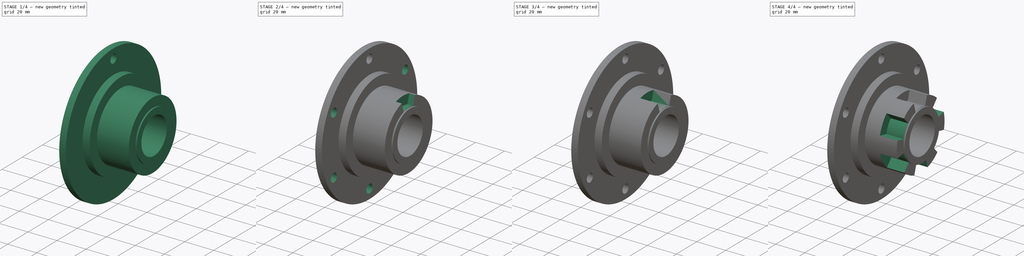
[diagram: build sequence overview — one tinted view per stage of 4, left to right]
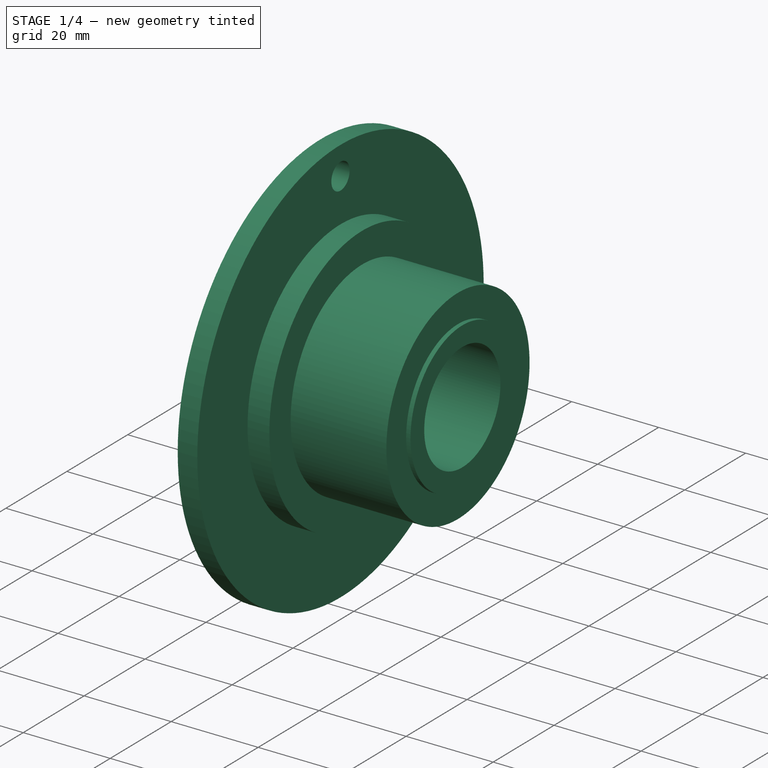
[diagram: stage 1 of 4 — iso view after this stage's code; geometry added in this stage tinted green]
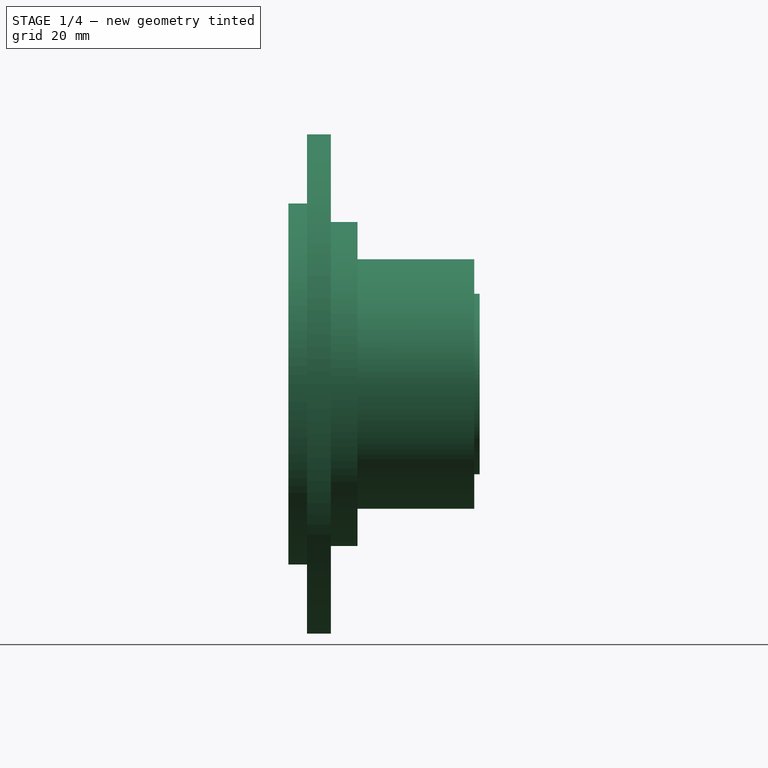
[diagram: stage 1 of 4 — front view after this stage's code; geometry added in this stage tinted green]
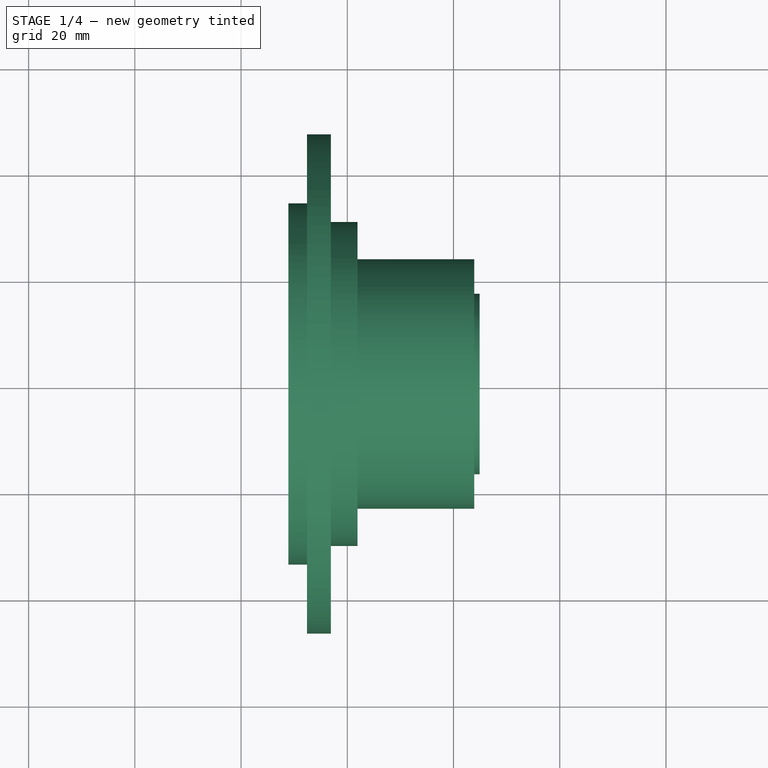
[diagram: stage 1 of 4 — top view after this stage's code; geometry added in this stage tinted green]
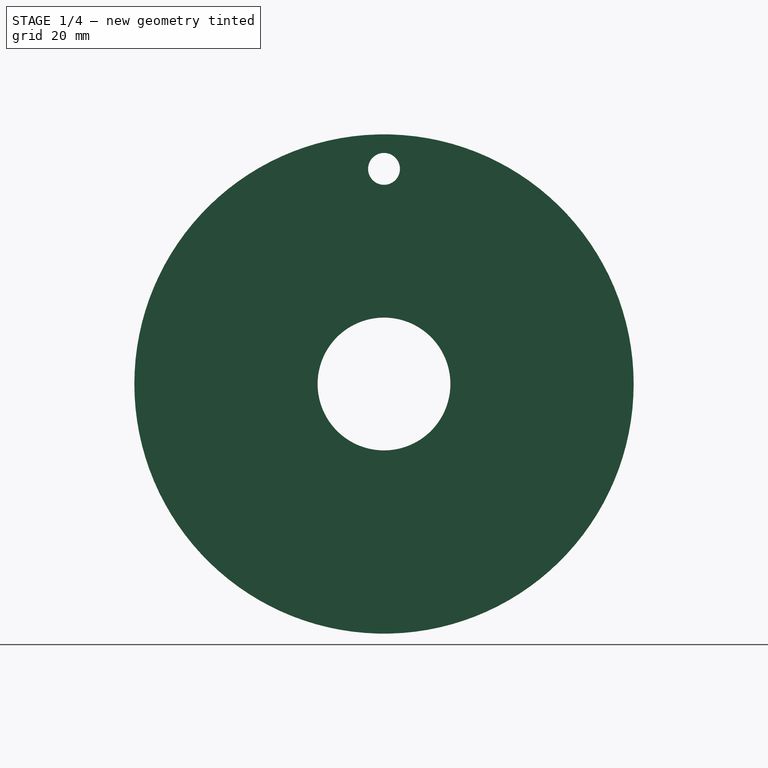
[diagram: stage 1 of 4 — right view after this stage's code; geometry added in this stage tinted green]
FCSTD DOCUMENT  (FreeCAD 1.0R39319 (Git))
Label: DG rear plate
License: All rights reserved
LicenseURL: https://en.wikipedia.org/wiki/All_rights_reserved
objects: Sketcher::SketchObject×7, PartDesign::Pocket×6, TechDraw::DrawProjGroupItem×3, PartDesign::PolarPattern×2, PartDesign::Revolution×1, PartDesign::Body×1, TechDraw::DrawSVGTemplate×1, TechDraw::DrawProjGroup×1, TechDraw::DrawPage×1
note: 40 computed .brp shape members not serialized (recipe doc carries the construction recipe); baked Part::Feature solids carry a one-line shape summary decoded from their .brp

FEATURE [Sketcher::SketchObject] Sketch
  ArcFitTolerance = 1e-06
  AttachmentSupport = -> [XY_Plane]
  FullyConstrained = false
  MakeInternals = false
  MapMode = 5
  sketch-geometry (16):
    g0: LineSegment StartX=68.9112 StartY=34 StartZ=0 EndX=68.9112 EndY=31.5 EndZ=0
    g1: LineSegment StartX=68.9112 StartY=31.5 StartZ=0 EndX=76.545 EndY=27.9403 EndZ=0
    g2: LineSegment StartX=76.545 StartY=27.9403 StartZ=0 EndX=76.545 EndY=14.5 EndZ=0
    g3: LineSegment StartX=76.545 StartY=14.5 StartZ=0 EndX=81.045 EndY=14.5 EndZ=0
    g4: LineSegment StartX=81.045 StartY=14.5 StartZ=0 EndX=81.045 EndY=12.5 EndZ=0
    g5: LineSegment StartX=81.045 StartY=12.5 StartZ=0 EndX=104.911 EndY=12.5 EndZ=0
    g6: LineSegment StartX=104.911 StartY=12.5 StartZ=0 EndX=104.911 EndY=17 EndZ=0
    g7: LineSegment StartX=104.911 StartY=17 StartZ=0 EndX=103.911 EndY=17 EndZ=0
    g8: LineSegment StartX=103.911 StartY=17 StartZ=0 EndX=103.911 EndY=23.5 EndZ=0
    g9: LineSegment StartX=103.911 StartY=23.5 StartZ=0 EndX=81.9112 EndY=23.5 EndZ=0
    g10: LineSegment StartX=81.9112 StartY=23.5 StartZ=0 EndX=81.9112 EndY=30.5 EndZ=0
    g11: LineSegment StartX=81.9112 StartY=30.5 StartZ=0 EndX=76.9112 EndY=30.5 EndZ=0
    g12: LineSegment StartX=76.9112 StartY=30.5 StartZ=0 EndX=76.9112 EndY=47 EndZ=0
    g13: LineSegment StartX=76.9112 StartY=47 StartZ=0 EndX=72.4112 EndY=47 EndZ=0
    g14: LineSegment StartX=72.4112 StartY=47 StartZ=0 EndX=72.4112 EndY=34 EndZ=0
    g15: LineSegment StartX=72.4112 StartY=34 StartZ=0 EndX=68.9112 EndY=34 EndZ=0
  constraints (46):
    c: Vertical(g0)
    c: Coincident(g0,g1)
    c: Coincident(g1,g2)
    c: Vertical(g2)
    c: Coincident(g2,g3)
    c: Horizontal(g3)
    c: Coincident(g3,g4)
    c: Vertical(g4)
    c: Coincident(g4,g5)
    c: Horizontal(g5)
    c: Coincident(g5,g6)
    c: Vertical(g6)
    c: Coincident(g6,g7)
    c: Horizontal(g7)
    c: Coincident(g7,g8)
    c: Vertical(g8)
    c: Coincident(g8,g9)
    c: Horizontal(g9)
    c: Coincident(g9,g10)
    c: Vertical(g10)
    c: Coincident(g10,g11)
    c: Coincident(g11,g12)
    c: Vertical(g12)
    c: Coincident(g12,g13)
    c: Horizontal(g13)
    c: Coincident(g13,g14)
    c: Vertical(g14)
    c: Coincident(g14,g15)
    c: Coincident(g15,g0)
    c: Horizontal(g11)
    c: Horizontal(g15)
    c: DistanceY(g0,g0) = 2.5
    c: Angle(g1,g0) = 2.00713
    c: DistanceX(g15,g15) = 3.5
    c: DistanceX(g13,g13) = 4.5
    c: DistanceX(g11,g11) = 5
    c: DistanceX(g9,g9) = 22
    c: DistanceY(g10,g10) = 7
    c: DistanceY(g8,g8) = 6.5
    c: DistanceY(g6,g6) = 4.5
    c: DistanceX(g3,g3) = 4.5
    c: DistanceY(g4,g4) = 2
    c: Distance(g-1,g5) = 12.5
    c: Distance(g-1,g15) = 34
    c: Distance(g-1,g13) = 47
    c: DistanceX(g7,g7) = 1
FEATURE [PartDesign::Revolution] Revolution
  Angle = 360
  Angle2 = 60
  Axis = (1,0,0)
  Base = (0,0,0)
  Profile = -> Sketch
  ReferenceAxis = -> X_Axis
  Refine = true
  Suppressed = false
  Type = 0
FEATURE [Sketcher::SketchObject] Sketch001
  ArcFitTolerance = 1e-06
  AttachmentSupport = -> [Revolution]
  ExternalGeometry = -> [Revolution]
  FullyConstrained = true
  MakeInternals = false
  MapMode = 5
  Placement = pos=(76.9112,0,0) rot=(0.57735,0.57735,0.57735;2.0944rad)
FEATURE [Sketcher::SketchObject] Sketch002
  ArcFitTolerance = 1e-06
  AttachmentSupport = -> [Revolution]
  FullyConstrained = true
  MakeInternals = false
  MapMode = 5
  Placement = pos=(76.9112,0,0) rot=(0.57735,0.57735,0.57735;2.0944rad)
  sketch-geometry (1):
    g0: Circle CenterX=0 CenterY=40.5 CenterZ=0 NormalX=0 NormalY=0 NormalZ=1 AngleXU=0 Radius=3
  constraints (3):
    c: PointOnObject(g0,g-2)
    c: Diameter(g0) = 6
    c: DistanceY(g-1,g0) = 40.5
FEATURE [PartDesign::Pocket] Pocket
  BaseFeature = -> Revolution
  Direction = (-1,0,0)
  Length = 5
  Length2 = 5
  Profile = -> Sketch002
  ReferenceAxis = -> Sketch002 [N_Axis]
  Refine = true
  Suppressed = false
  Type = 1
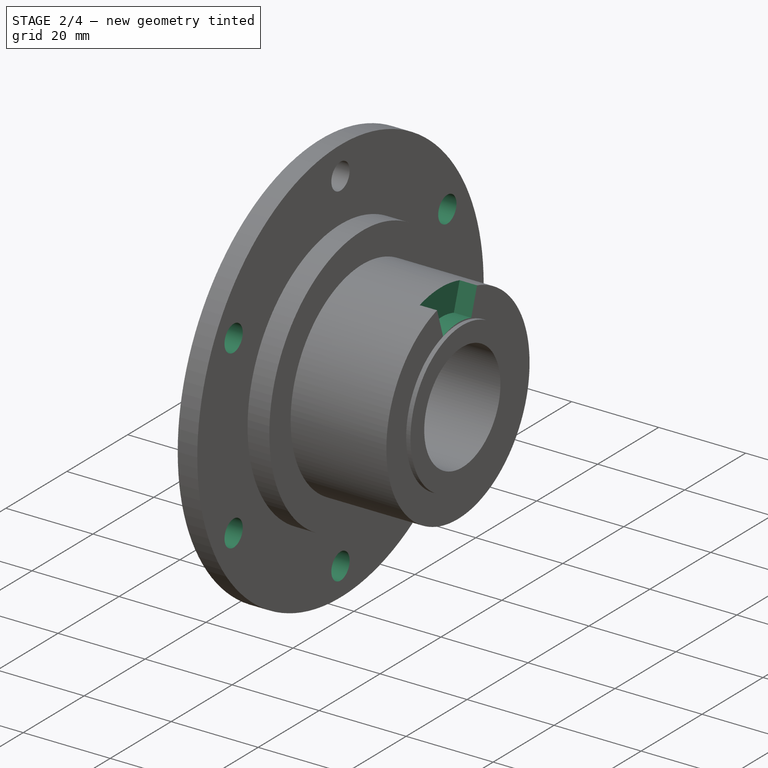
[diagram: stage 2 of 4 — iso view after this stage's code; geometry added in this stage tinted green]
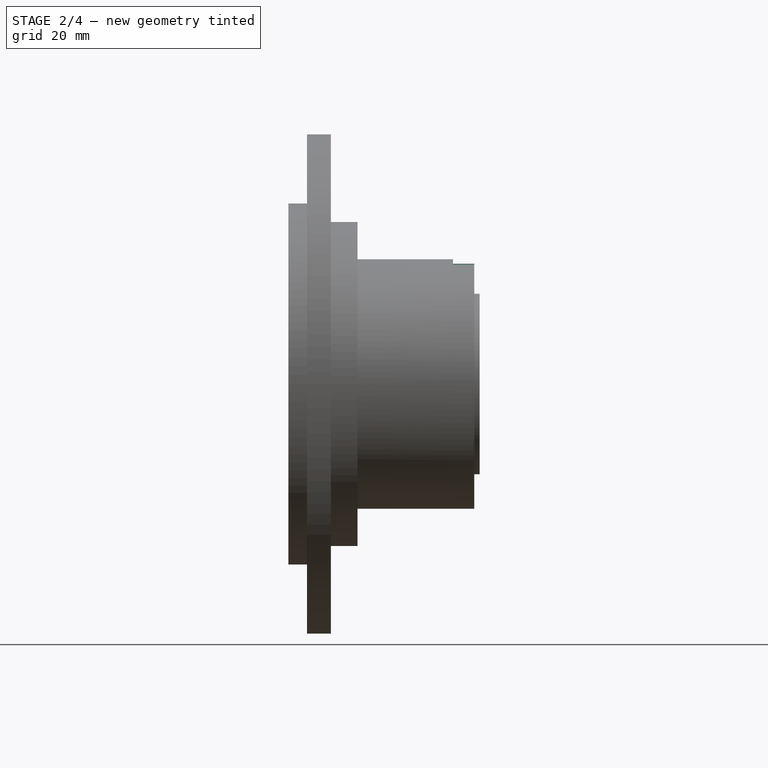
[diagram: stage 2 of 4 — front view after this stage's code; geometry added in this stage tinted green]
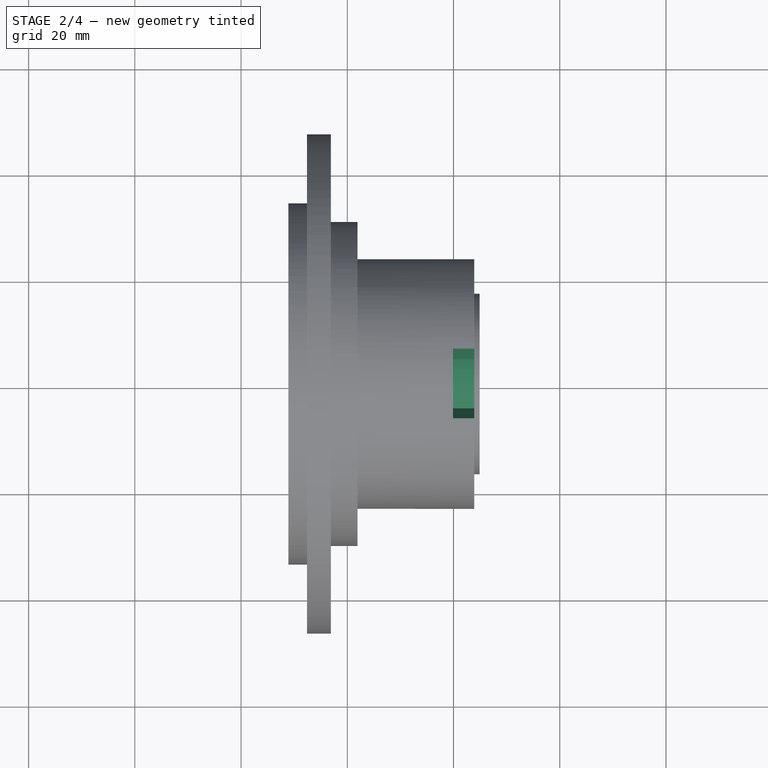
[diagram: stage 2 of 4 — top view after this stage's code; geometry added in this stage tinted green]
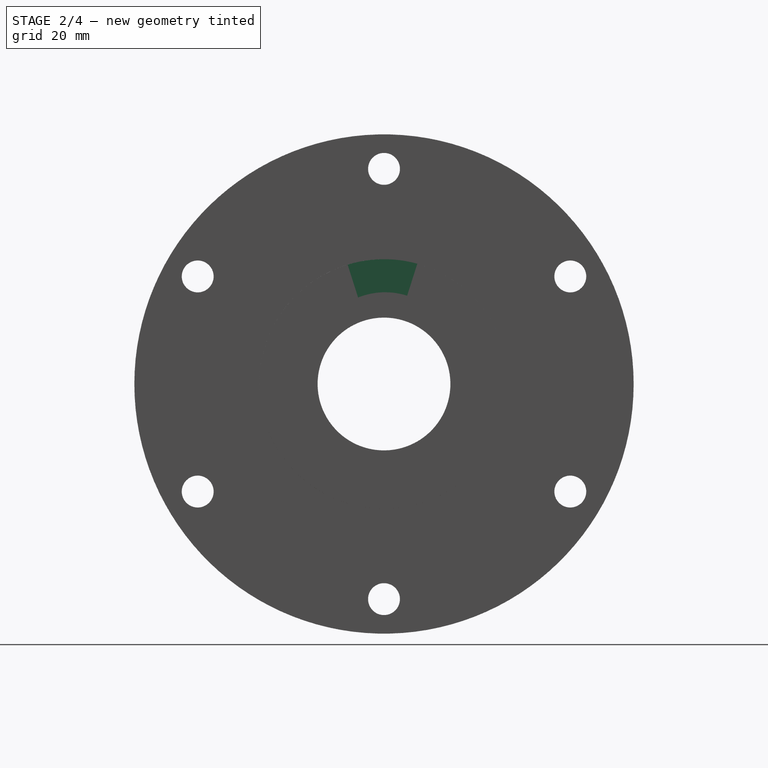
[diagram: stage 2 of 4 — right view after this stage's code; geometry added in this stage tinted green]
FEATURE [PartDesign::PolarPattern] PolarPattern
  Angle = 360
  Axis = -> Sketch002 [N_Axis]
  BaseFeature = -> Pocket
  Mode = 0
  Occurrences = 6
  Offset = 120
  Originals = -> [Pocket]
  Refine = true
  Suppressed = false
  TransformMode = 0
FEATURE [Sketcher::SketchObject] Sketch003
  ArcFitTolerance = 1e-06
  AttachmentSupport = -> [PolarPattern]
  ExternalGeometry = -> [PolarPattern]
  FullyConstrained = true
  MakeInternals = false
  MapMode = 5
  Placement = pos=(76.9112,0,0) rot=(0.57735,0.57735,0.57735;2.0944rad)
FEATURE [Sketcher::SketchObject] Sketch004
  ArcFitTolerance = 1e-06
  AttachmentSupport = -> [PolarPattern]
  FullyConstrained = true
  MakeInternals = false
  MapMode = 5
  Placement = pos=(76.9112,0,0) rot=(0.57735,0.57735,0.57735;2.0944rad)
FEATURE [Sketcher::SketchObject] Sketch005
  ArcFitTolerance = 1e-06
  AttachmentSupport = -> [PolarPattern]
  FullyConstrained = true
  MakeInternals = false
  MapMode = 5
  Placement = pos=(76.9112,0,0) rot=(0.57735,0.57735,0.57735;2.0944rad)
FEATURE [Sketcher::SketchObject] Sketch006
  ArcFitTolerance = 1e-06
  AttachmentSupport = -> [PolarPattern]
  ExternalGeometry = -> [PolarPattern]
  FullyConstrained = false
  MakeInternals = false
  MapMode = 5
  Placement = pos=(104.911,0,0) rot=(0.57735,0.57735,0.57735;2.0944rad)
  sketch-geometry (4):
    g0: LineSegment StartX=-4.87718 StartY=16.2854 StartZ=0 EndX=-6.84906 EndY=22.4798 EndZ=0
    g1: ArcOfCircle CenterX=-0.0128653 CenterY=1.00476 CenterZ=0 NormalX=0 NormalY=0 NormalZ=1 AngleXU=0 Radius=22.5369 StartAngle=1.28821 EndAngle=1.87899
    g2: LineSegment StartX=6.27124 StartY=22.6478 StartZ=0 EndX=4.35975 EndY=16.63 EndZ=0
    g3: ArcOfCircle CenterX=0.221021 CenterY=3.60048 CenterZ=0 NormalX=0 NormalY=0 NormalZ=1 AngleXU=0 Radius=13.6711 StartAngle=1.26323 EndAngle=1.95295
  constraints (8):
    c: PointOnObject(g0,g-3)
    c: PointOnObject(g0,g-4)
    c: Perpendicular(g0,g1) = 1.5708
    c: PointOnObject(g1,g-4)
    c: Coincident(g1,g2)
    c: Perpendicular(g2,g3) = 4.71239
    c: Coincident(g3,g0)
    c: Angle(g2,g0) = 0.615752
FEATURE [PartDesign::Pocket] Pocket001
  BaseFeature = -> PolarPattern
  Direction = (-1,0,0)
  Length = 5
  Length2 = 5
  Profile = -> Sketch006
  ReferenceAxis = -> Sketch006 [N_Axis]
  Refine = true
  Suppressed = false
  Type = 0
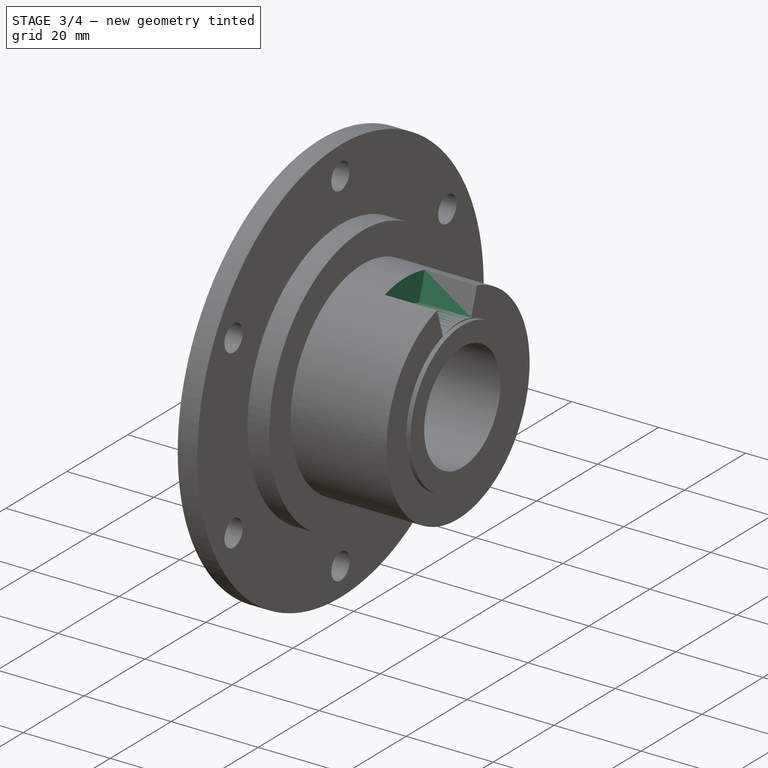
[diagram: stage 3 of 4 — iso view after this stage's code; geometry added in this stage tinted green]
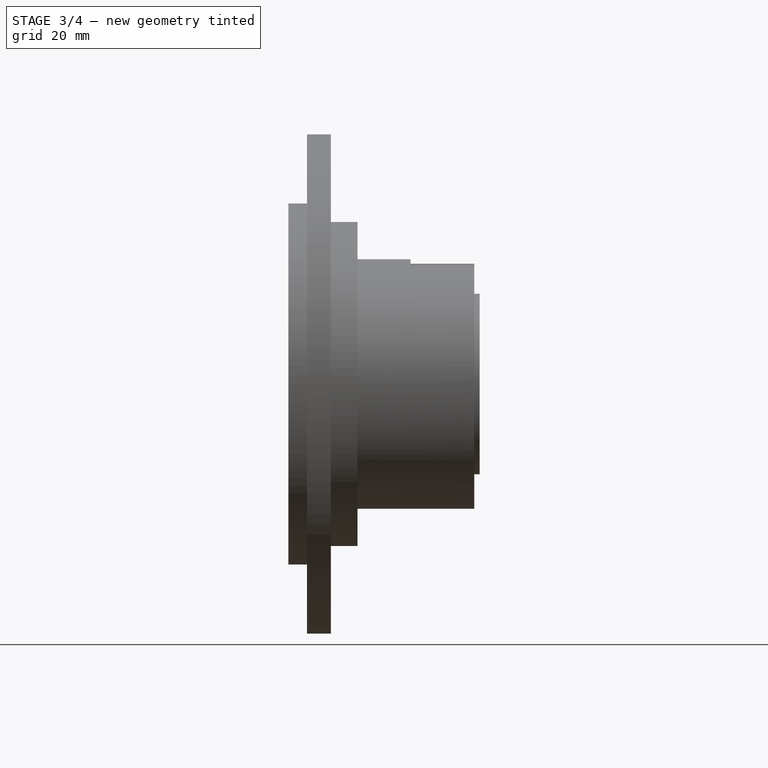
[diagram: stage 3 of 4 — front view after this stage's code; geometry added in this stage tinted green]
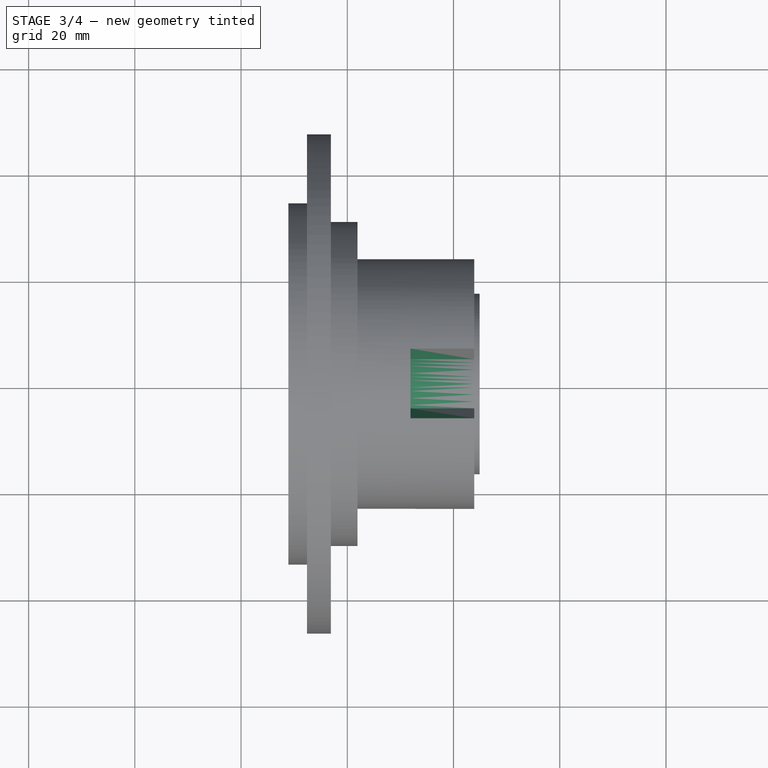
[diagram: stage 3 of 4 — top view after this stage's code; geometry added in this stage tinted green]
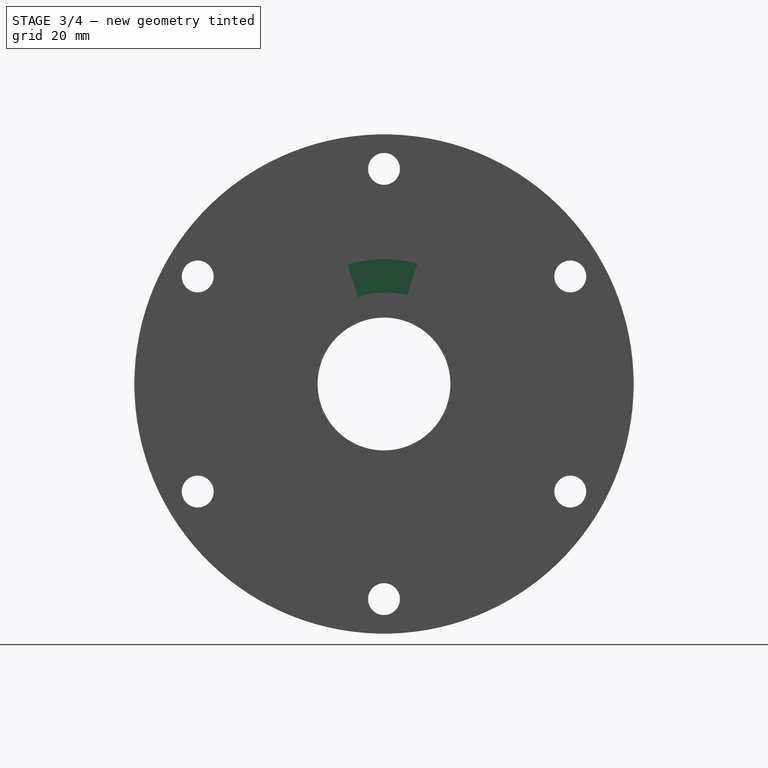
[diagram: stage 3 of 4 — right view after this stage's code; geometry added in this stage tinted green]
FEATURE [PartDesign::Pocket] Pocket002
  BaseFeature = -> Pocket001
  Direction = (-1,0,0)
  Length = 5
  Length2 = 5
  Profile = -> Sketch006
  ReferenceAxis = -> Sketch006 [N_Axis]
  Refine = true
  Suppressed = false
  Type = 0
FEATURE [PartDesign::Pocket] Pocket003
  BaseFeature = -> Pocket002
  Direction = (-1,0,0)
  Length = 5
  Length2 = 5
  Profile = -> Sketch006
  ReferenceAxis = -> Sketch006 [N_Axis]
  Refine = true
  Suppressed = false
  Type = 0
FEATURE [PartDesign::Pocket] Pocket004
  BaseFeature = -> Pocket003
  Direction = (-1,0,0)
  Length = 13
  Length2 = 5
  Profile = -> Sketch006
  ReferenceAxis = -> Sketch006 [N_Axis]
  Refine = true
  Suppressed = false
  Type = 0
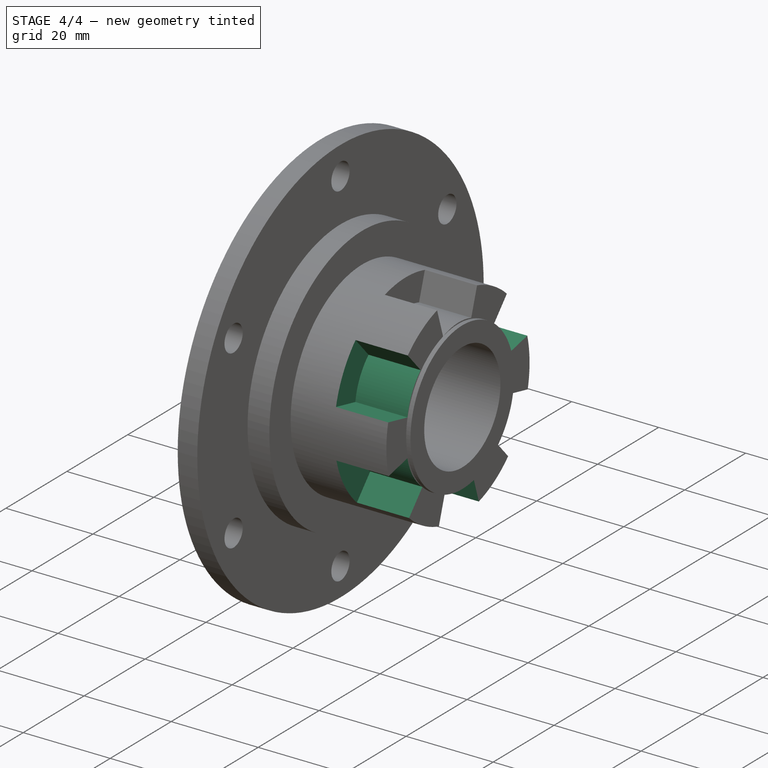
[diagram: stage 4 of 4 — iso view after this stage's code; geometry added in this stage tinted green]
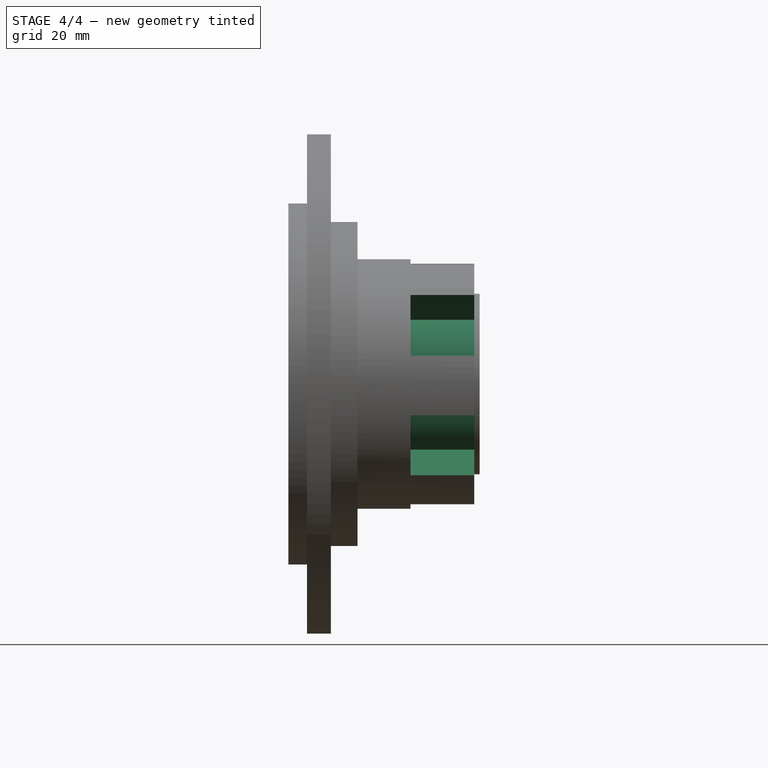
[diagram: stage 4 of 4 — front view after this stage's code; geometry added in this stage tinted green]
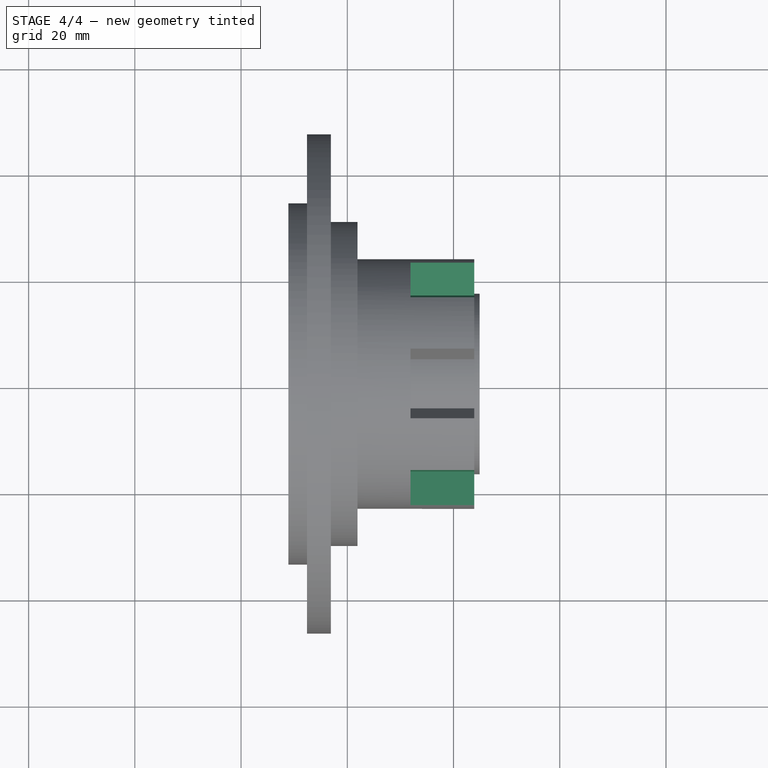
[diagram: stage 4 of 4 — top view after this stage's code; geometry added in this stage tinted green]
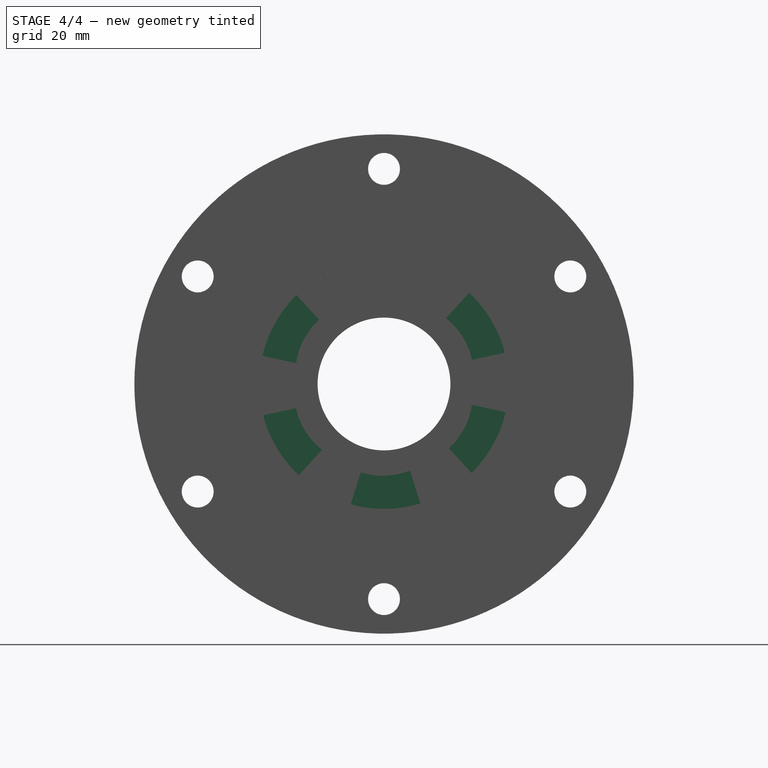
[diagram: stage 4 of 4 — right view after this stage's code; geometry added in this stage tinted green]
FEATURE [PartDesign::Pocket] Pocket005
  BaseFeature = -> Pocket004
  Direction = (-1,0,0)
  Length = 13
  Length2 = 5
  Profile = -> Sketch006
  ReferenceAxis = -> Sketch006 [N_Axis]
  Refine = true
  Suppressed = false
  Type = 0
FEATURE [PartDesign::PolarPattern] PolarPattern001
  Angle = 360
  Axis = -> Sketch006 [N_Axis]
  BaseFeature = -> Pocket005
  Mode = 0
  Occurrences = 6
  Offset = 120
  Originals = -> [Pocket005]
  Refine = true
  Suppressed = false
  TransformMode = 0
FEATURE [PartDesign::Body] Body
  AllowCompound = false
  Group = -> [Sketch,Revolution,Sketch001,Sketch002,Pocket,PolarPattern,Sketch003,Sketch004,Sketch005,Sketch006,Pocket001,Pocket002,Pocket003,Pocket004,Pocket005,PolarPattern001]
  Origin = -> Origin
  Tip = -> PolarPattern001
FEATURE [TechDraw::DrawSVGTemplate] Template
  EditableTexts = AuthorName=Krushna MAnwatkar; CheckDate=CHECK DATE; CreationDate=06-01-2026; DrawingNumber=NUMBER; FC-Title=DG rear plate; SheetNumber=1 / 1; Subtitle=SUBTITLE; SupervisorName=SUPERVISOR NAME; Weight=WEIGHT; scale=1 : 1
  Height = 297
  Orientation = 1
  Template = C:/Program Files/FreeCAD 1.0/data/Mod/TechDraw/Templates/A3_Landscape_TD.svg
  Width = 420
FEATURE [TechDraw::DrawProjGroupItem] View  label="Front"
  CoarseView = false
  Direction = (0,-1,0)
  Focus = 100
  HardHidden = false
  IsoCount = 0
  IsoHidden = false
  IsoVisible = false
  LockPosition = true
  Perspective = false
  Rotation = 0
  RotationVector = (1,0,0)
  ScaleType = 2
  ScrubCount = 1
  SeamHidden = false
  SeamVisible = false
  SmoothHidden = false
  SmoothVisible = true
  Source = -> [Body]
  Type = 0
  X = 0
  XDirection = (1,0,0)
  Y = 0
FEATURE [TechDraw::DrawProjGroupItem] ProjItem001  label="Right"
  CoarseView = false
  Direction = (1,-1e-16,0)
  Focus = 100
  HardHidden = false
  IsoCount = 0
  IsoHidden = false
  IsoVisible = false
  LockPosition = false
  Perspective = false
  Rotation = 0
  RotationVector = (1,0,0)
  ScaleType = 0
  ScrubCount = 1
  SeamHidden = false
  SeamVisible = false
  SmoothHidden = false
  SmoothVisible = true
  Source = -> [Body]
  Type = 2
  X = 80
  XDirection = (1e-16,1,0)
  Y = 0
FEATURE [TechDraw::DrawProjGroupItem] ProjItem002  label="FrontBottomRight"
  CoarseView = false
  Direction = (0.57735,-0.57735,-0.57735)
  Focus = 100
  HardHidden = false
  IsoCount = 0
  IsoHidden = false
  IsoVisible = false
  LockPosition = false
  Perspective = false
  Rotation = 0
  RotationVector = (1,0,0)
  ScaleType = 0
  ScrubCount = 1
  SeamHidden = false
  SeamVisible = false
  SmoothHidden = false
  SmoothVisible = true
  Source = -> [Body]
  Type = 9
  X = 80
  XDirection = (0.707107,0.707107,0)
  Y = -105.823
FEATURE [TechDraw::DrawProjGroup] ProjGroup
  Anchor = -> View
  AutoDistribute = true
  LockPosition = false
  ProjectionType = 1
  Rotation = 0
  ScaleType = 0
  Source = -> [Body]
  Views = -> [View,ProjItem001,ProjItem002]
  X = 73.2083
  Y = 226.976
  spacingX = 15
  spacingY = 15
FEATURE [TechDraw::DrawPage] Page
  KeepUpdated = true
  NextBalloonIndex = 1
  ProjectionType = 0
  Template = -> Template
  Views = -> [ProjGroup]
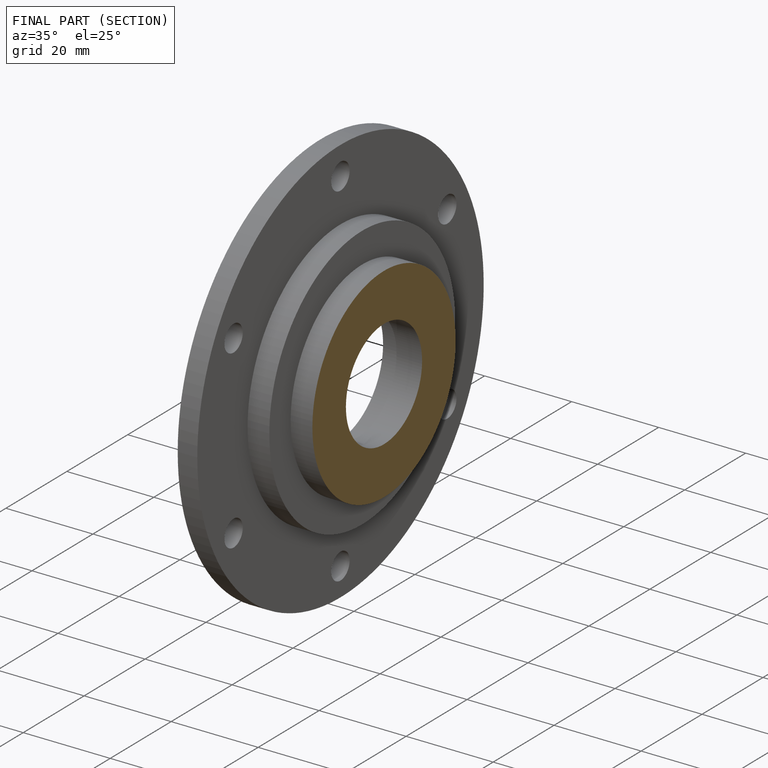
[diagram: finished part — half-section view (interior)]
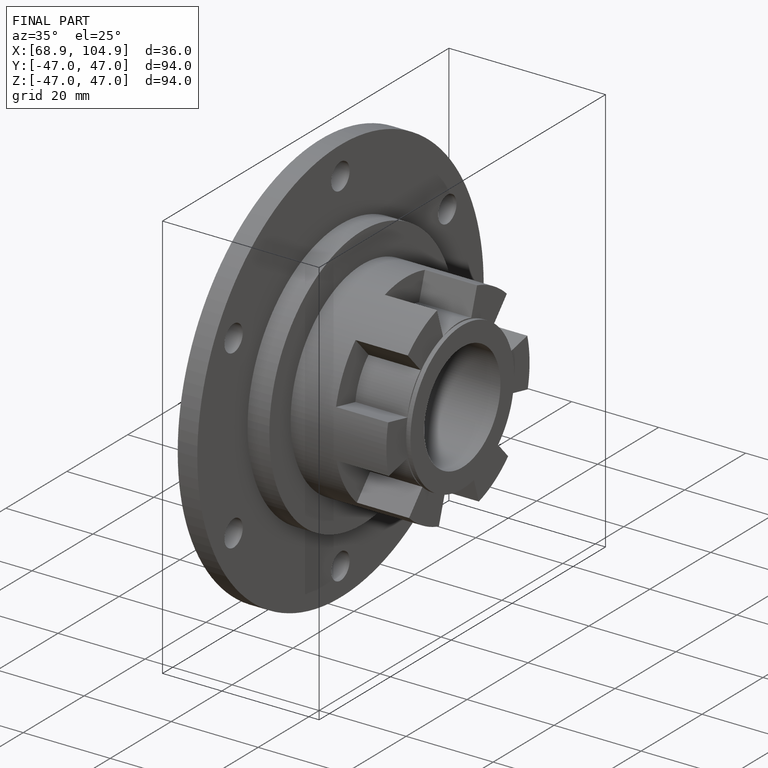
[diagram: finished part — iso view with bounding-box wireframe]
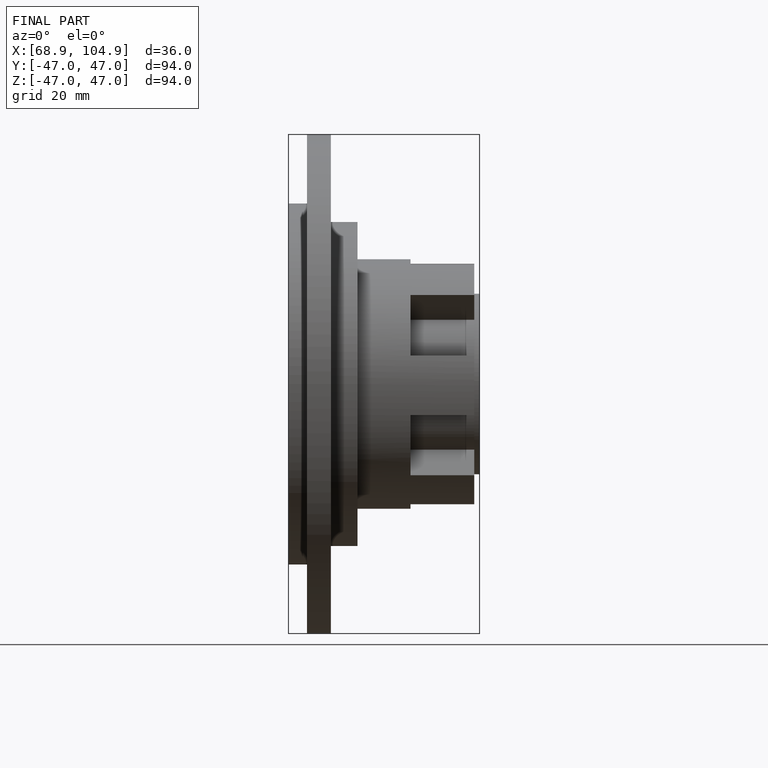
[diagram: finished part — front view with bounding-box wireframe]
